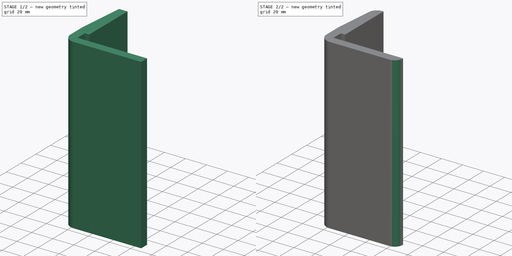
[diagram: build sequence overview — one tinted view per stage of 2, left to right]
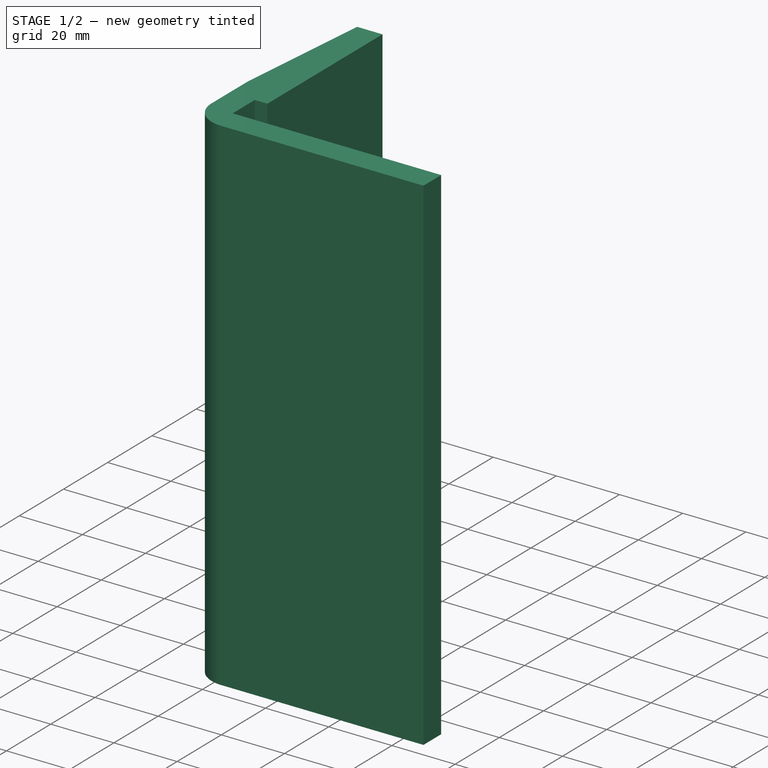
[diagram: stage 1 of 2 — iso view after this stage's code; geometry added in this stage tinted green]
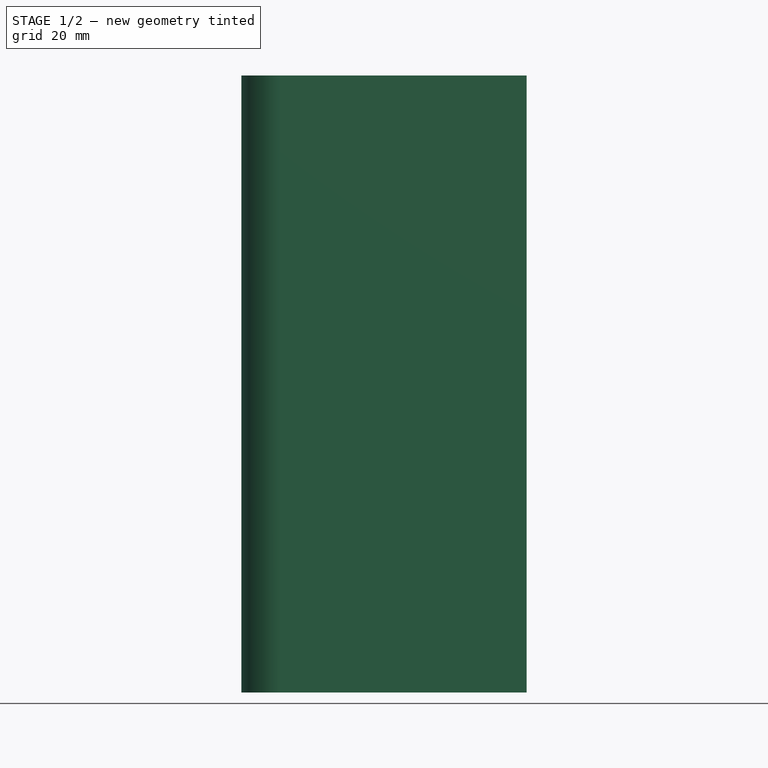
[diagram: stage 1 of 2 — front view after this stage's code; geometry added in this stage tinted green]
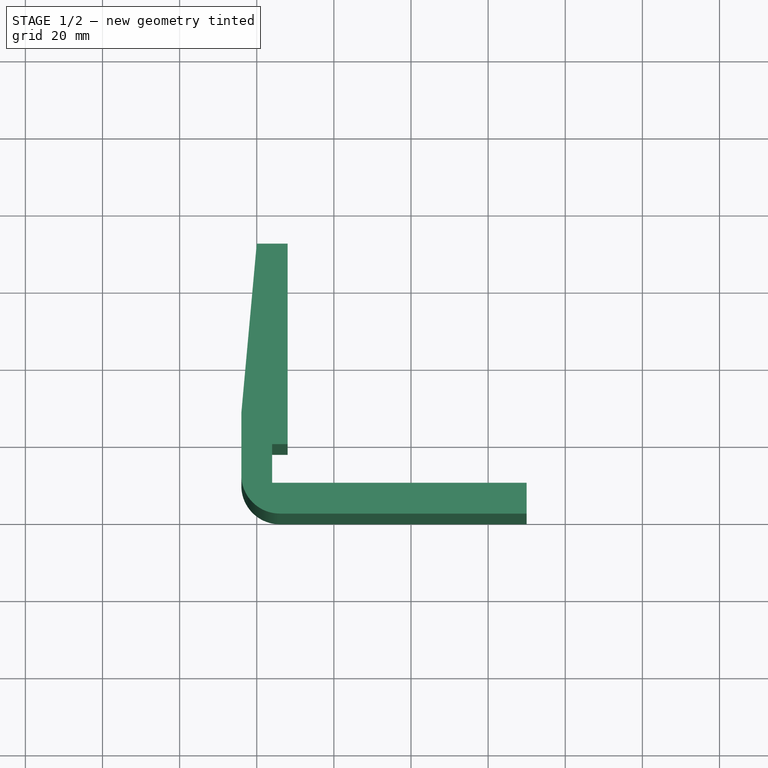
[diagram: stage 1 of 2 — top view after this stage's code; geometry added in this stage tinted green]
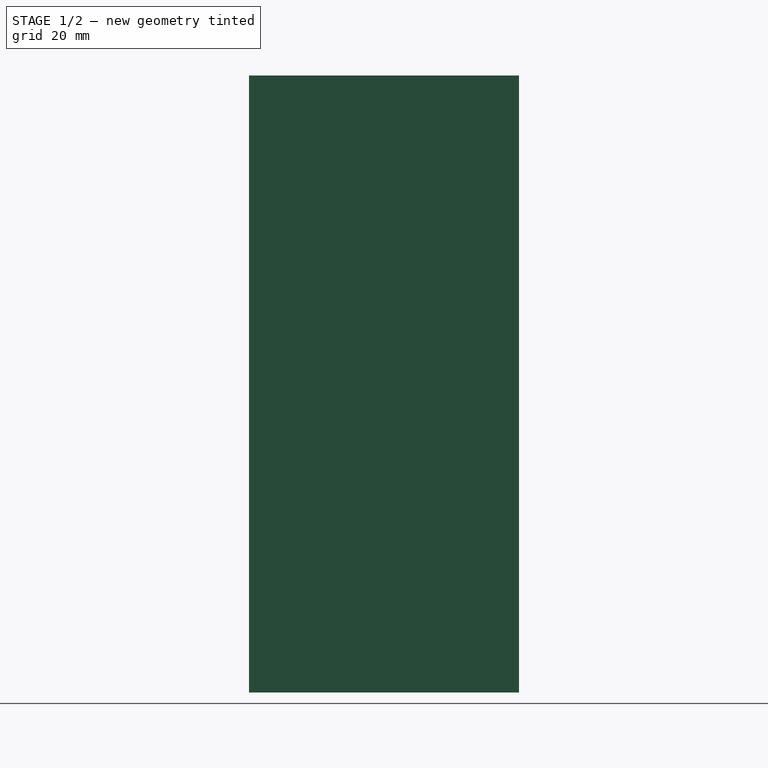
[diagram: stage 1 of 2 — right view after this stage's code; geometry added in this stage tinted green]
FCSTD DOCUMENT  (FreeCAD 0.19R)
Label: RepRapSupport_outer
License: All rights reserved
LicenseURL: http://en.wikipedia.org/wiki/All_rights_reserved
objects: PartDesign::Fillet×2, Sketcher::SketchObject×1, PartDesign::Pad×1, PartDesign::Body×1
note: 8 computed .brp shape members not serialized (recipe doc carries the construction recipe); baked Part::Feature solids carry a one-line shape summary decoded from their .brp

FEATURE [Sketcher::SketchObject] Sketch
  FullyConstrained = true
  MapMode = 5
  Support = -> [XY_Plane]
  sketch-geometry (10):
    g0: LineSegment StartX=0 StartY=0 StartZ=0 EndX=70 EndY=0 EndZ=0
    g1: LineSegment StartX=70 StartY=0 StartZ=0 EndX=70 EndY=8 EndZ=0
    g2: LineSegment StartX=70 StartY=8 StartZ=0 EndX=4 EndY=8 EndZ=0
    g3: LineSegment StartX=4 StartY=8 StartZ=0 EndX=4 EndY=18 EndZ=0
    g4: LineSegment StartX=4 StartY=18 StartZ=0 EndX=8 EndY=18 EndZ=0
    g5: LineSegment StartX=8 StartY=18 StartZ=0 EndX=8 EndY=70 EndZ=0
    g6: LineSegment StartX=8 StartY=70 StartZ=0 EndX=0 EndY=70 EndZ=0
    g7: LineSegment StartX=0 StartY=0 StartZ=0 EndX=-4 EndY=0 EndZ=0
    g8: LineSegment StartX=-4 StartY=0 StartZ=0 EndX=-4 EndY=26 EndZ=0
    g9: LineSegment StartX=-4 StartY=26 StartZ=0 EndX=0 EndY=70 EndZ=0
  constraints (29):
    c: Coincident(g0,g-1)
    c: Coincident(g1,g0)
    c: Coincident(g2,g1)
    c: Horizontal(g2)
    c: Coincident(g3,g2)
    c: Coincident(g4,g3)
    c: Coincident(g5,g4)
    c: Coincident(g6,g5)
    c: Vertical(g5)
    c: Horizontal(g4)
    c: Vertical(g3)
    c: Vertical(g1)
    c: Horizontal(g0)
    c: Horizontal(g6)
    c: Equal(g6,g1)
    c: DistanceY(g1,g1) = 8
    c: DistanceX(g4,g4) = 4
    c: DistanceY(g3,g3) = 10
    c: DistanceX(g0,g0) = 70
    c: Coincident(g7,g0)
    c: Coincident(g8,g7)
    c: Coincident(g9,g6)
    c: Vertical(g8)
    c: Horizontal(g7)
    c: DistanceX(g7,g2) = 8
    c: DistanceY(g0,g6) = 70
    c: Vertical(g6,g0)
    c: DistanceY(g4,g8) = 8
    c: Coincident(g9,g8)
FEATURE [PartDesign::Pad] Pad
  Direction = (1,1,1)
  Length = 160
  Length2 = 100
  Profile = -> Sketch
  Type = 0
FEATURE [PartDesign::Fillet] Fillet
  Base = -> Pad [Edge26]
  BaseFeature = -> Pad
  Radius = 10
  SupportTransform = false
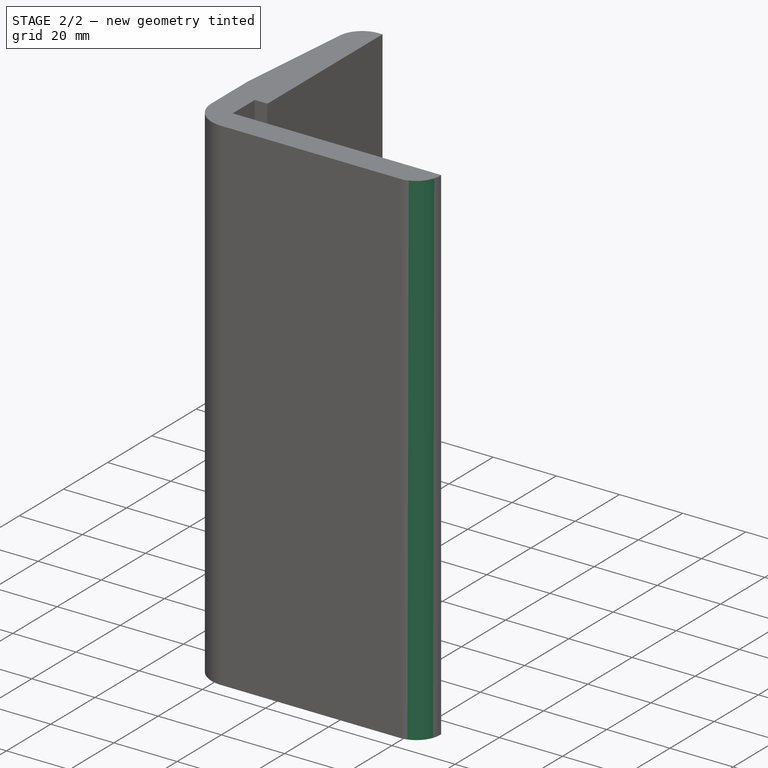
[diagram: stage 2 of 2 — iso view after this stage's code; geometry added in this stage tinted green]
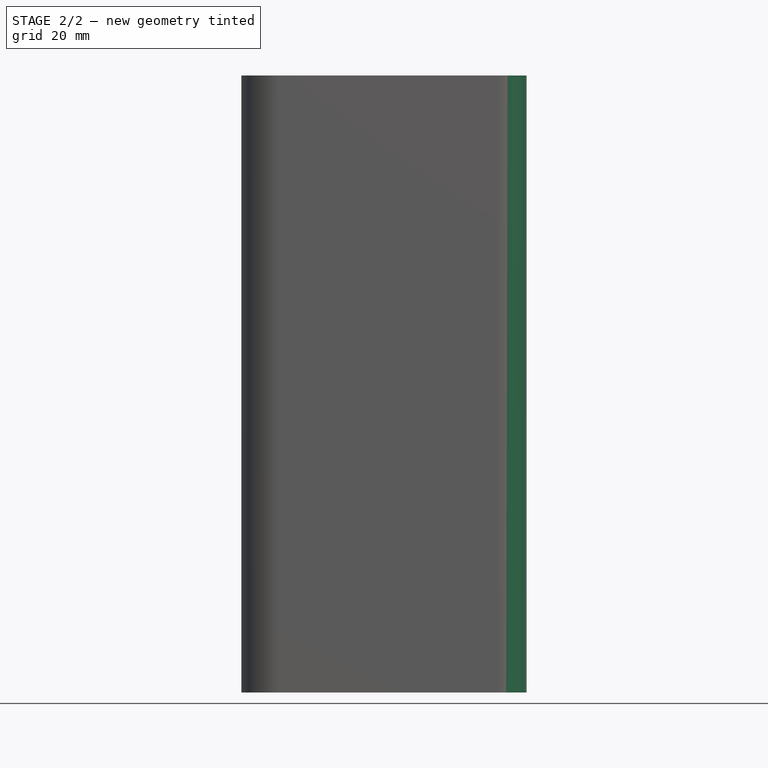
[diagram: stage 2 of 2 — front view after this stage's code; geometry added in this stage tinted green]
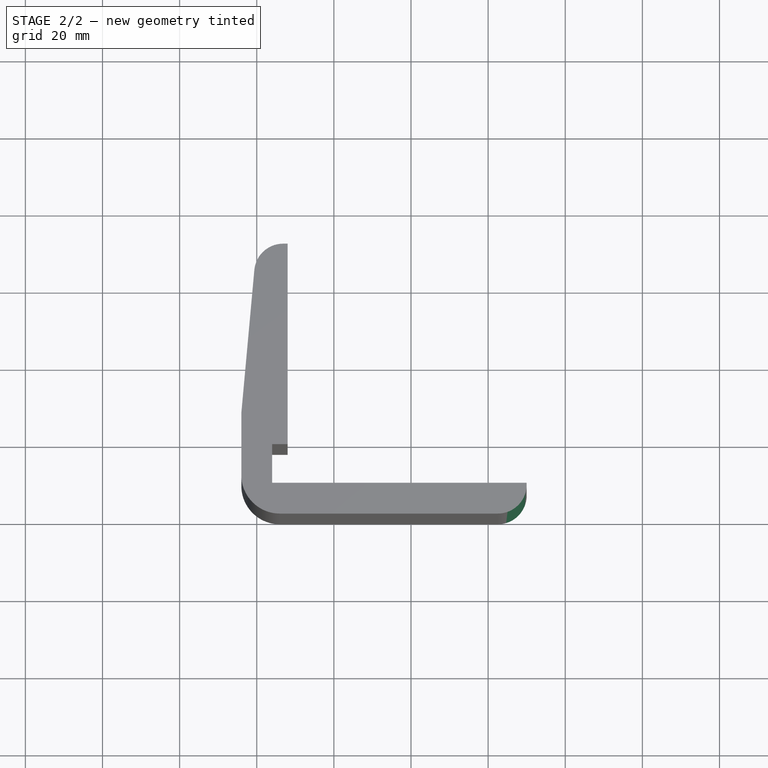
[diagram: stage 2 of 2 — top view after this stage's code; geometry added in this stage tinted green]
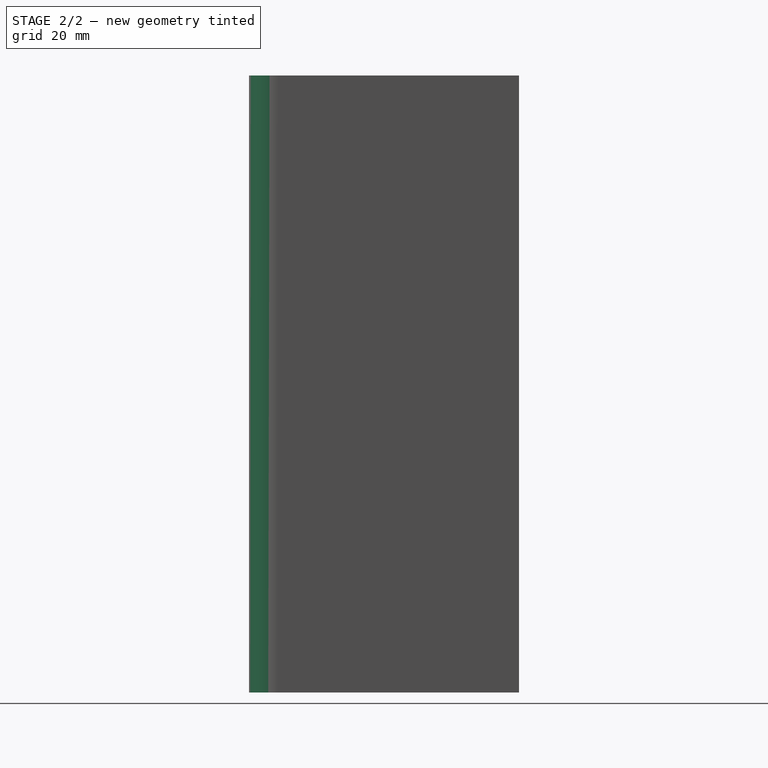
[diagram: stage 2 of 2 — right view after this stage's code; geometry added in this stage tinted green]
FEATURE [PartDesign::Fillet] Fillet001
  Base = -> Fillet [Edge27,Edge3]
  BaseFeature = -> Fillet
  Radius = 7.5
  SupportTransform = false
FEATURE [PartDesign::Body] Body
  Group = -> [Sketch,Pad,Fillet,Fillet001]
  Origin = -> Origin
  Tip = -> Fillet001
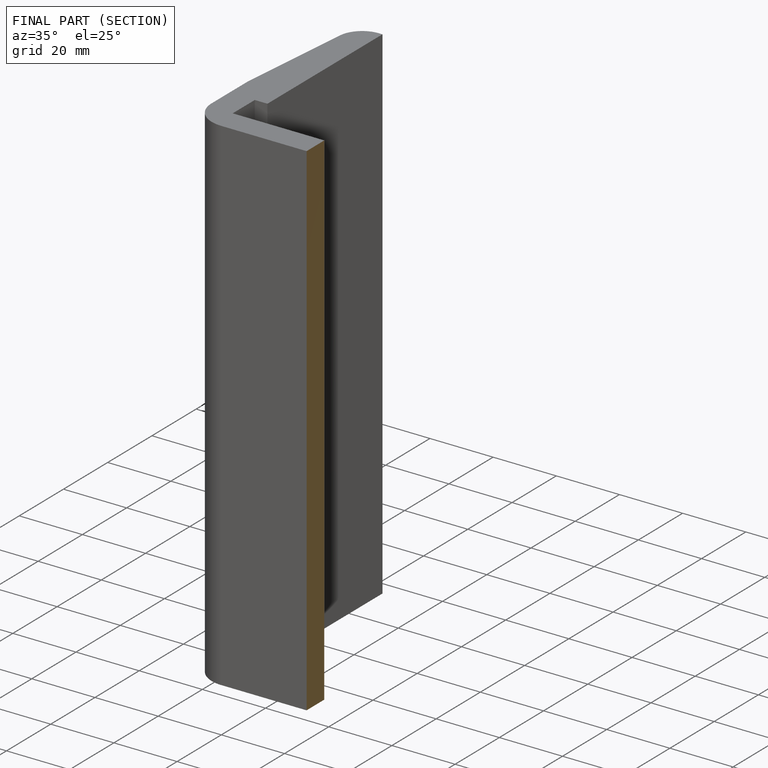
[diagram: finished part — half-section view (interior)]
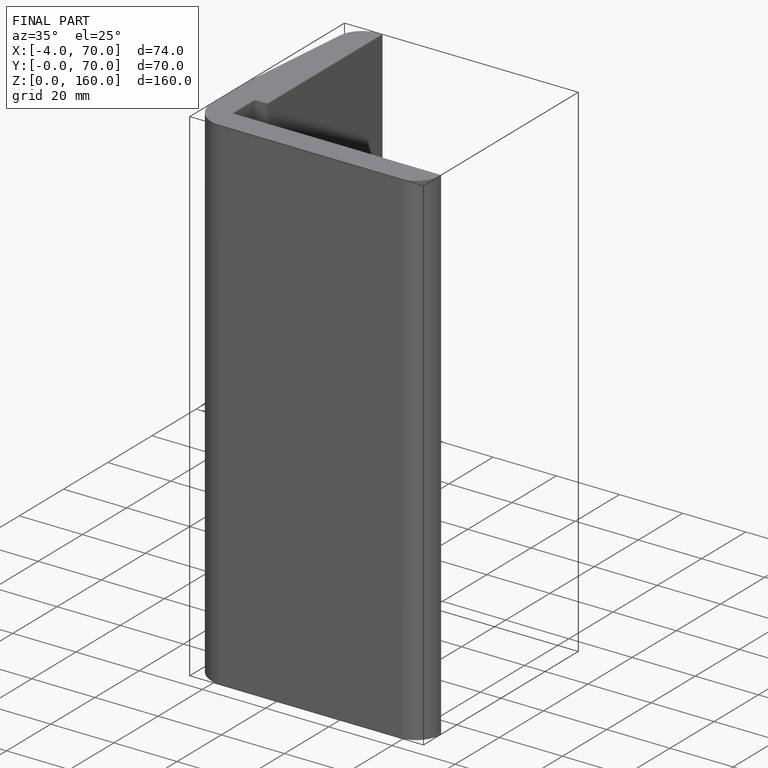
[diagram: finished part — iso view with bounding-box wireframe]
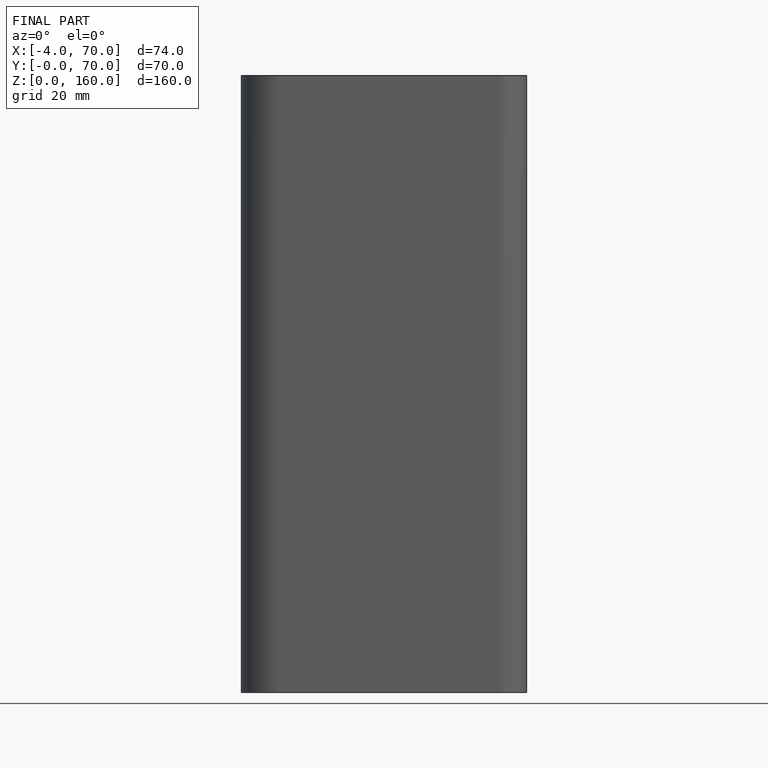
[diagram: finished part — front view with bounding-box wireframe]
